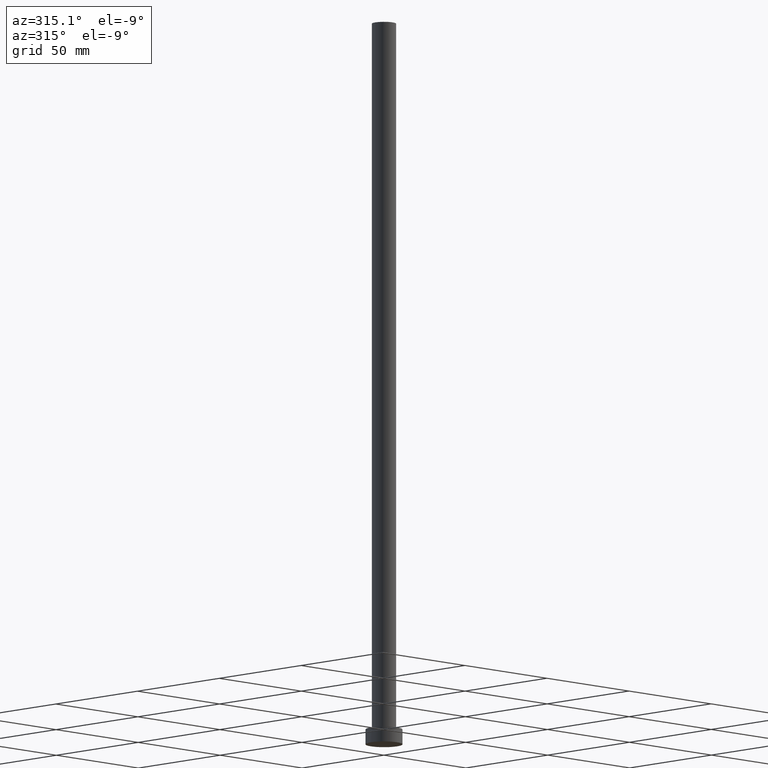
[diagram: clean part render]
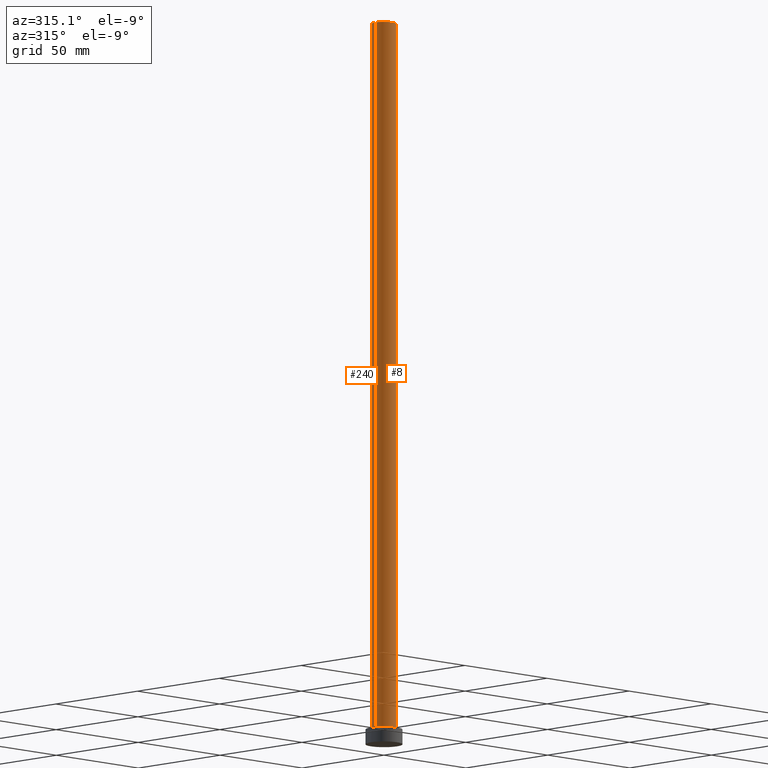
[diagram: same view with one multi-face feature highlighted, each face labeled with its STEP entity id]
A machine part, auxiliary view. The highlighted faces form ONE feature: a constant-radius fillet chain: 2 tangent blend faces with common blend radius 5.25 mm. The faces share edges in the B-rep.
Their STEP definitions:
[1] entity #240 (Cylinder):
#15 = CARTESIAN_POINT ( 'NONE',  ( 5.250000000000000888, 6.429395695523604153E-16, 315.0000000000000000 ) ) ;
#17 = EDGE_CURVE ( 'NONE', #119, #19, #39, .T. ) ;
#18 = CARTESIAN_POINT ( 'NONE',  ( -5.250000000000000888, 0.000000000000000000, 6.500000000000000000 ) ) ;
#19 = VERTEX_POINT ( 'NONE', #221 ) ;
#27 = VECTOR ( 'NONE', #50, 1000.000000000000000 ) ;
#29 = AXIS2_PLACEMENT_3D ( 'NONE', #64, #37, #98 ) ;
#32 = LINE ( 'NONE', #90, #27 ) ;
#37 = DIRECTION ( 'NONE',  ( -0.000000000000000000, -0.000000000000000000, -1.000000000000000000 ) ) ;
#39 = LINE ( 'NONE', #121, #170 ) ;
#50 = DIRECTION ( 'NONE',  ( -0.000000000000000000, -0.000000000000000000, -1.000000000000000000 ) ) ;
#53 = DIRECTION ( 'NONE',  ( 0.000000000000000000, 0.000000000000000000, 1.000000000000000000 ) ) ;
#57 = AXIS2_PLACEMENT_3D ( 'NONE', #156, #53, #214 ) ;
#61 = VERTEX_POINT ( 'NONE', #188 ) ;
#64 = CARTESIAN_POINT ( 'NONE',  ( 0.000000000000000000, 0.000000000000000000, 315.0000000000000000 ) ) ;
#65 = ORIENTED_EDGE ( 'NONE', *, *, #116, .F. ) ;
#67 = CIRCLE ( 'NONE', #75, 5.250000000000000888 ) ;
#75 = AXIS2_PLACEMENT_3D ( 'NONE', #235, #118, #78 ) ;
#78 = DIRECTION ( 'NONE',  ( 1.000000000000000000, 0.000000000000000000, 0.000000000000000000 ) ) ;
#79 = ORIENTED_EDGE ( 'NONE', *, *, #128, .T. ) ;
#90 = CARTESIAN_POINT ( 'NONE',  ( -5.250000000000000888, 0.000000000000000000, 315.0000000000000000 ) ) ;
#98 = DIRECTION ( 'NONE',  ( -1.000000000000000000, 0.000000000000000000, 0.000000000000000000 ) ) ;
#99 = ORIENTED_EDGE ( 'NONE', *, *, #237, .F. ) ;
#116 = EDGE_CURVE ( 'NONE', #61, #201, #32, .T. ) ;
#118 = DIRECTION ( 'NONE',  ( 0.000000000000000000, 0.000000000000000000, 1.000000000000000000 ) ) ;
#119 = VERTEX_POINT ( 'NONE', #15 ) ;
#121 = CARTESIAN_POINT ( 'NONE',  ( 5.250000000000000888, 6.429395695523604153E-16, 315.0000000000000000 ) ) ;
#128 = EDGE_CURVE ( 'NONE', #19, #201, #242, .T. ) ;
#141 = FACE_OUTER_BOUND ( 'NONE', #163, .T. ) ;
#156 = CARTESIAN_POINT ( 'NONE',  ( 0.000000000000000000, 0.000000000000000000, 6.500000000000000000 ) ) ;
#163 = EDGE_LOOP ( 'NONE', ( #99, #203, #79, #65 ) ) ;
#165 = DIRECTION ( 'NONE',  ( -0.000000000000000000, -0.000000000000000000, -1.000000000000000000 ) ) ;
#170 = VECTOR ( 'NONE', #165, 1000.000000000000000 ) ;
#188 = CARTESIAN_POINT ( 'NONE',  ( -5.250000000000000888, 0.000000000000000000, 315.0000000000000000 ) ) ;
#201 = VERTEX_POINT ( 'NONE', #18 ) ;
#203 = ORIENTED_EDGE ( 'NONE', *, *, #17, .T. ) ;
#214 = DIRECTION ( 'NONE',  ( 1.000000000000000000, 0.000000000000000000, 0.000000000000000000 ) ) ;
#216 = CYLINDRICAL_SURFACE ( 'NONE', #29, 5.250000000000000888 ) ;
#221 = CARTESIAN_POINT ( 'NONE',  ( 5.250000000000000888, 6.429395695523604153E-16, 6.500000000000000000 ) ) ;
#235 = CARTESIAN_POINT ( 'NONE',  ( 0.000000000000000000, 0.000000000000000000, 315.0000000000000000 ) ) ;
#237 = EDGE_CURVE ( 'NONE', #119, #61, #67, .T. ) ;
#240 = ADVANCED_FACE ( 'NONE', ( #141 ), #216, .T. ) ;
#242 = CIRCLE ( 'NONE', #57, 5.250000000000000888 ) ;
[2] entity #8 (Cylinder):
#3 = ORIENTED_EDGE ( 'NONE', *, *, #162, .F. ) ;
#6 = AXIS2_PLACEMENT_3D ( 'NONE', #52, #133, #233 ) ;
#8 = ADVANCED_FACE ( 'NONE', ( #198 ), #120, .T. ) ;
#14 = DIRECTION ( 'NONE',  ( 0.000000000000000000, 0.000000000000000000, 1.000000000000000000 ) ) ;
#15 = CARTESIAN_POINT ( 'NONE',  ( 5.250000000000000888, 6.429395695523604153E-16, 315.0000000000000000 ) ) ;
#16 = AXIS2_PLACEMENT_3D ( 'NONE', #199, #102, #219 ) ;
#17 = EDGE_CURVE ( 'NONE', #119, #19, #39, .T. ) ;
#18 = CARTESIAN_POINT ( 'NONE',  ( -5.250000000000000888, 0.000000000000000000, 6.500000000000000000 ) ) ;
#19 = VERTEX_POINT ( 'NONE', #221 ) ;
#27 = VECTOR ( 'NONE', #50, 1000.000000000000000 ) ;
#32 = LINE ( 'NONE', #90, #27 ) ;
#39 = LINE ( 'NONE', #121, #170 ) ;
#43 = CIRCLE ( 'NONE', #135, 5.250000000000000888 ) ;
#50 = DIRECTION ( 'NONE',  ( -0.000000000000000000, -0.000000000000000000, -1.000000000000000000 ) ) ;
#52 = CARTESIAN_POINT ( 'NONE',  ( 0.000000000000000000, 0.000000000000000000, 6.500000000000000000 ) ) ;
#61 = VERTEX_POINT ( 'NONE', #188 ) ;
#90 = CARTESIAN_POINT ( 'NONE',  ( -5.250000000000000888, 0.000000000000000000, 315.0000000000000000 ) ) ;
#102 = DIRECTION ( 'NONE',  ( -0.000000000000000000, -0.000000000000000000, -1.000000000000000000 ) ) ;
#116 = EDGE_CURVE ( 'NONE', #61, #201, #32, .T. ) ;
#119 = VERTEX_POINT ( 'NONE', #15 ) ;
#120 = CYLINDRICAL_SURFACE ( 'NONE', #16, 5.250000000000000888 ) ;
#121 = CARTESIAN_POINT ( 'NONE',  ( 5.250000000000000888, 6.429395695523604153E-16, 315.0000000000000000 ) ) ;
#125 = ORIENTED_EDGE ( 'NONE', *, *, #116, .T. ) ;
#126 = CIRCLE ( 'NONE', #6, 5.250000000000000888 ) ;
#133 = DIRECTION ( 'NONE',  ( 0.000000000000000000, 0.000000000000000000, 1.000000000000000000 ) ) ;
#135 = AXIS2_PLACEMENT_3D ( 'NONE', #157, #14, #136 ) ;
#136 = DIRECTION ( 'NONE',  ( 1.000000000000000000, 0.000000000000000000, 0.000000000000000000 ) ) ;
#140 = ORIENTED_EDGE ( 'NONE', *, *, #17, .F. ) ;
#144 = EDGE_LOOP ( 'NONE', ( #140, #3, #125, #185 ) ) ;
#157 = CARTESIAN_POINT ( 'NONE',  ( 0.000000000000000000, 0.000000000000000000, 315.0000000000000000 ) ) ;
#162 = EDGE_CURVE ( 'NONE', #61, #119, #43, .T. ) ;
#165 = DIRECTION ( 'NONE',  ( -0.000000000000000000, -0.000000000000000000, -1.000000000000000000 ) ) ;
#170 = VECTOR ( 'NONE', #165, 1000.000000000000000 ) ;
#184 = EDGE_CURVE ( 'NONE', #201, #19, #126, .T. ) ;
#185 = ORIENTED_EDGE ( 'NONE', *, *, #184, .T. ) ;
#188 = CARTESIAN_POINT ( 'NONE',  ( -5.250000000000000888, 0.000000000000000000, 315.0000000000000000 ) ) ;
#198 = FACE_OUTER_BOUND ( 'NONE', #144, .T. ) ;
#199 = CARTESIAN_POINT ( 'NONE',  ( 0.000000000000000000, 0.000000000000000000, 315.0000000000000000 ) ) ;
#201 = VERTEX_POINT ( 'NONE', #18 ) ;
#219 = DIRECTION ( 'NONE',  ( -1.000000000000000000, 0.000000000000000000, 0.000000000000000000 ) ) ;
#221 = CARTESIAN_POINT ( 'NONE',  ( 5.250000000000000888, 6.429395695523604153E-16, 6.500000000000000000 ) ) ;
#233 = DIRECTION ( 'NONE',  ( 1.000000000000000000, 0.000000000000000000, 0.000000000000000000 ) ) ;